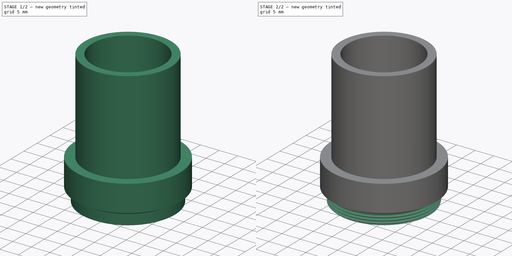
[diagram: build sequence overview — one tinted view per stage of 2, left to right]
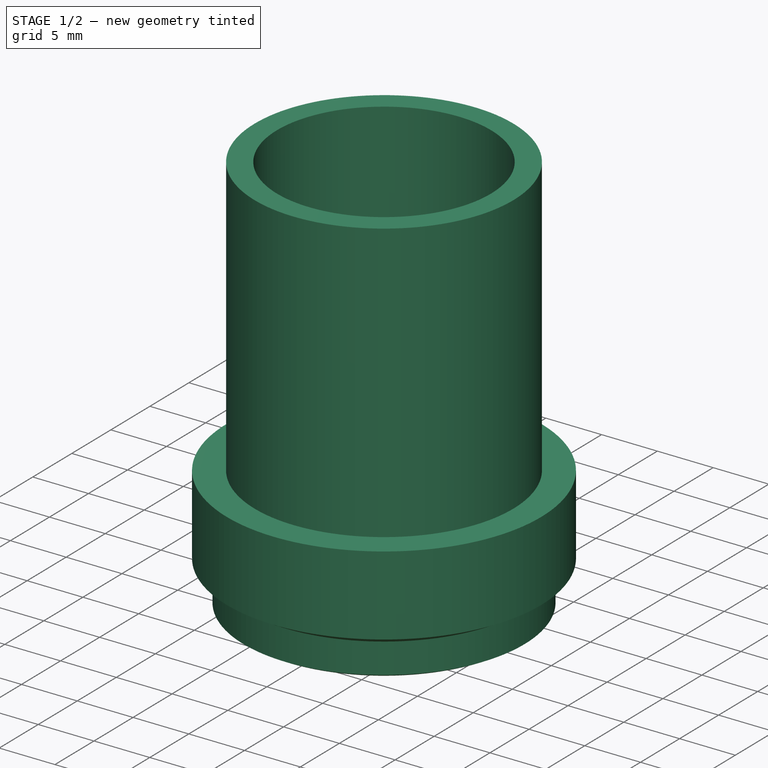
[diagram: stage 1 of 2 — iso view after this stage's code; geometry added in this stage tinted green]
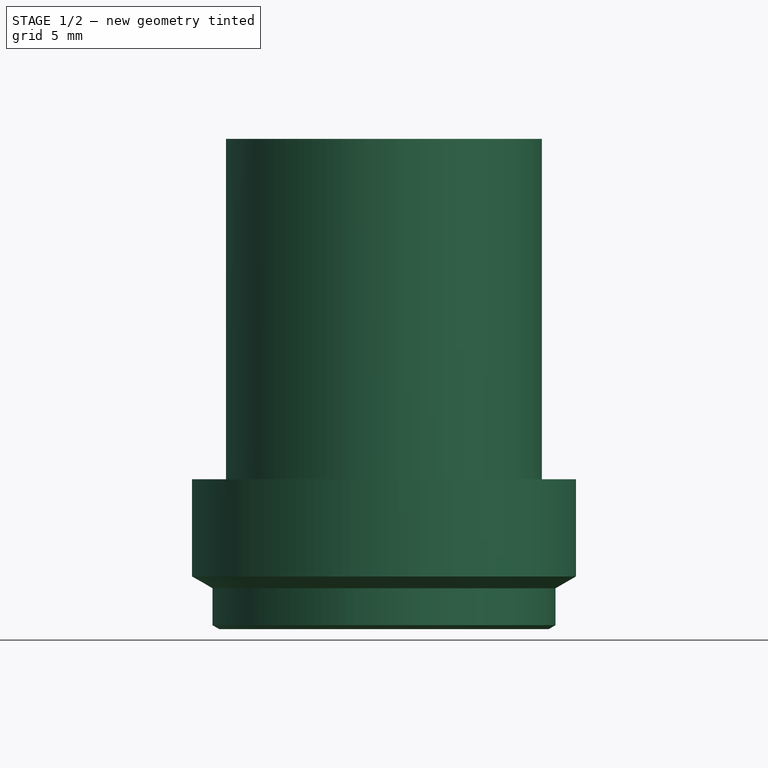
[diagram: stage 1 of 2 — front view after this stage's code; geometry added in this stage tinted green]
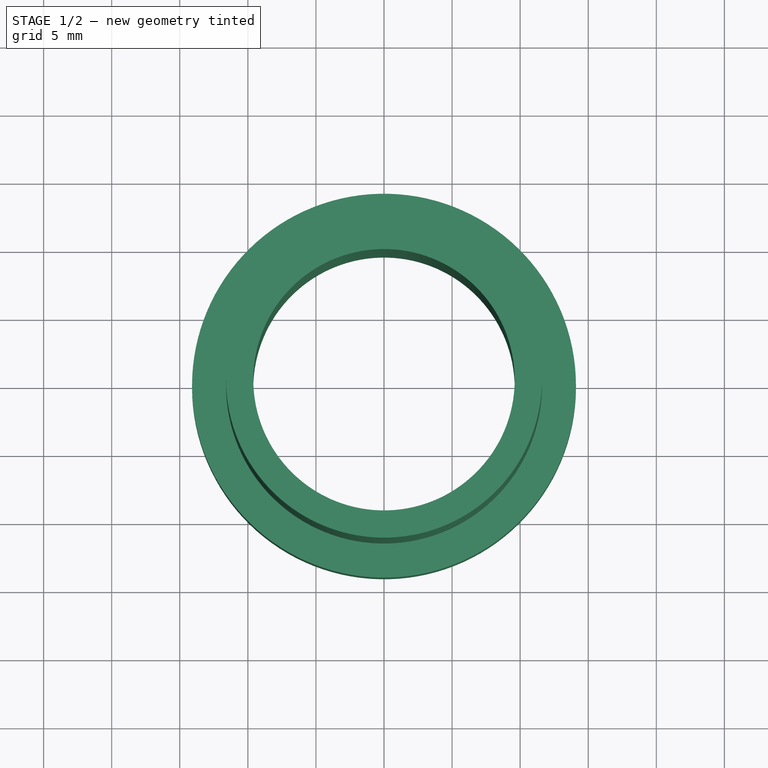
[diagram: stage 1 of 2 — top view after this stage's code; geometry added in this stage tinted green]
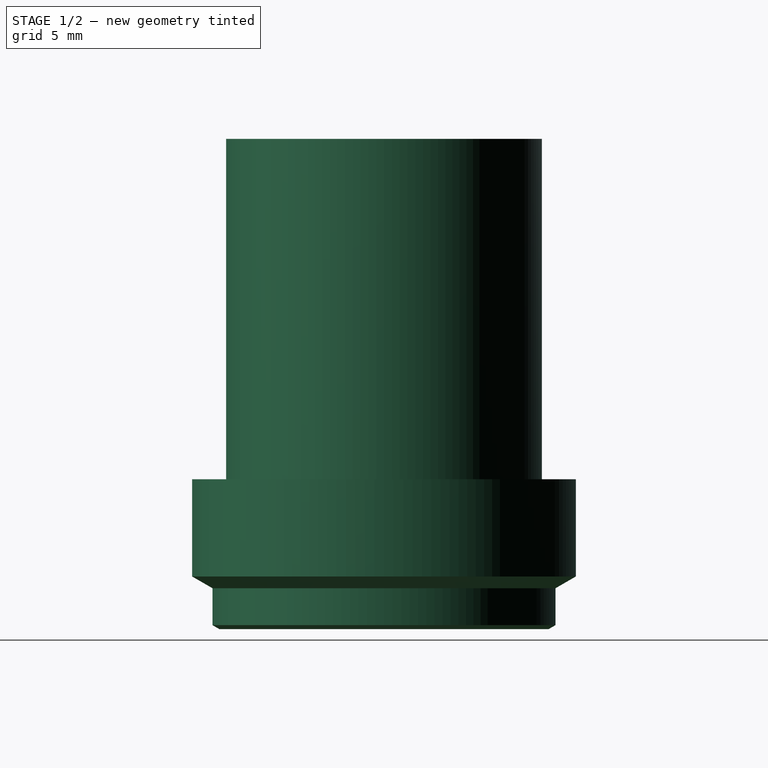
[diagram: stage 1 of 2 — right view after this stage's code; geometry added in this stage tinted green]
FCSTD DOCUMENT  (FreeCAD 1.0R39319 (Git))
Label: cam-adapter
License: All rights reserved
LicenseURL: https://en.wikipedia.org/wiki/All_rights_reserved
objects: Sketcher::SketchObject×2, PartDesign::Revolution×1, PartDesign::SubtractiveHelix×1, PartDesign::Body×1
note: 11 computed .brp shape members not serialized (recipe doc carries the construction recipe); baked Part::Feature solids carry a one-line shape summary decoded from their .brp

FEATURE [Sketcher::SketchObject] Sketch
  ArcFitTolerance = 1e-06
  AttachmentSupport = -> [XZ_Plane]
  FullyConstrained = true
  MakeInternals = false
  MapMode = 5
  Placement = pos=(0,0,0) rot=(1,0,0;1.5708rad)
  sketch-geometry (9):
    g0: LineSegment StartX=11.6 StartY=0 StartZ=0 EndX=14.1 EndY=0 EndZ=0
    g1: LineSegment StartX=14.1 StartY=0 StartZ=0 EndX=14.1 EndY=-7.13397 EndZ=0
    g2: LineSegment StartX=14.1 StartY=-7.13397 StartZ=0 EndX=12.6 EndY=-8 EndZ=0
    g3: LineSegment StartX=12.6 StartY=-8 StartZ=0 EndX=12.6 EndY=-10.7113 EndZ=0
    g4: LineSegment StartX=12.1 StartY=-11 StartZ=0 EndX=9.6 EndY=-11 EndZ=0
    g5: LineSegment StartX=9.6 StartY=-11 StartZ=0 EndX=9.6 EndY=25 EndZ=0
    g6: LineSegment StartX=11.6 StartY=0 StartZ=0 EndX=11.6 EndY=25 EndZ=0
    g7: LineSegment StartX=11.6 StartY=25 StartZ=0 EndX=9.6 EndY=25 EndZ=0
    g8: LineSegment StartX=12.6 StartY=-10.7113 StartZ=0 EndX=12.1 EndY=-11 EndZ=0
  constraints (27):
    c: PointOnObject(g0,g-1)
    c: PointOnObject(g0,g-1)
    c: Coincident(g0,g1)
    c: Vertical(g1)
    c: Coincident(g1,g2)
    c: Coincident(g2,g3)
    c: Vertical(g3)
    c: Horizontal(g4)
    c: Coincident(g4,g5)
    c: Vertical(g5)
    c: Coincident(g0,g6)
    c: Vertical(g6)
    c: Coincident(g6,g7)
    c: Horizontal(g7)
    c: Coincident(g5,g7)
    c: DistanceY(g6,g6) = 25
    c: DistanceX(g3) = 12.6
    c: DistanceX(g6) = 11.6
    c: DistanceX(g7,g7) = 2
    c: DistanceY(g4) = -11
    c: Coincident(g3,g8)
    c: Coincident(g8,g4)
    c: DistanceY(g4,g2) = 3
    c: Parallel(g8,g2)
    c: DistanceX(g4,g3) = 0.5
    c: Angle(g-1,g2) = 0.523599
    c: DistanceX(g2,g1) = 1.5
FEATURE [PartDesign::Revolution] Revolution
  Angle = 360
  Angle2 = 60
  Axis = (0,2e-16,1)
  Base = (0,0,0)
  Placement = pos=(0,0,0) rot=(1,0,0;1.5708rad)
  Profile = -> Sketch
  ReferenceAxis = -> Sketch [V_Axis]
  Refine = true
  Reversed = true
  Suppressed = false
  Type = 0
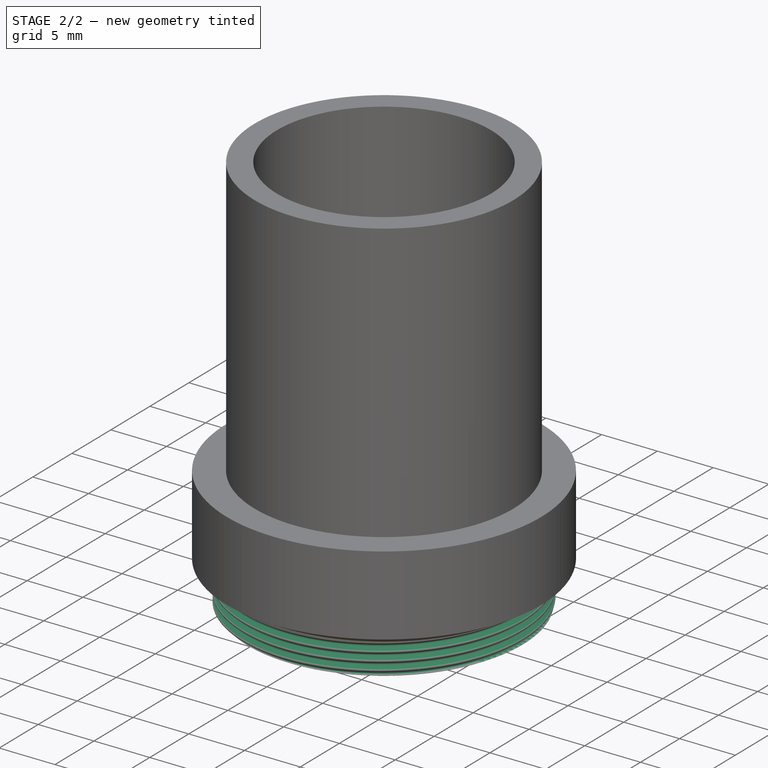
[diagram: stage 2 of 2 — iso view after this stage's code; geometry added in this stage tinted green]
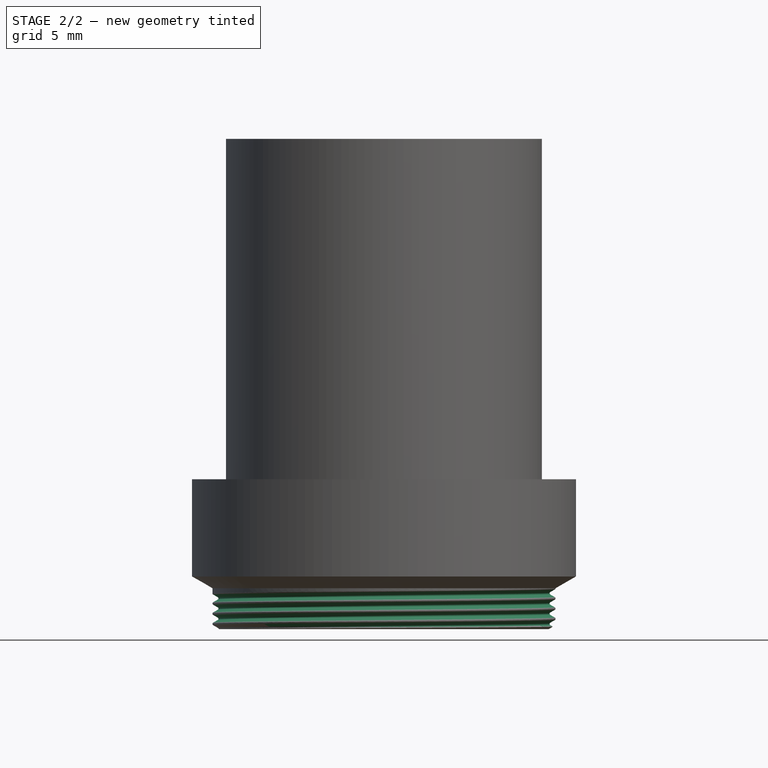
[diagram: stage 2 of 2 — front view after this stage's code; geometry added in this stage tinted green]
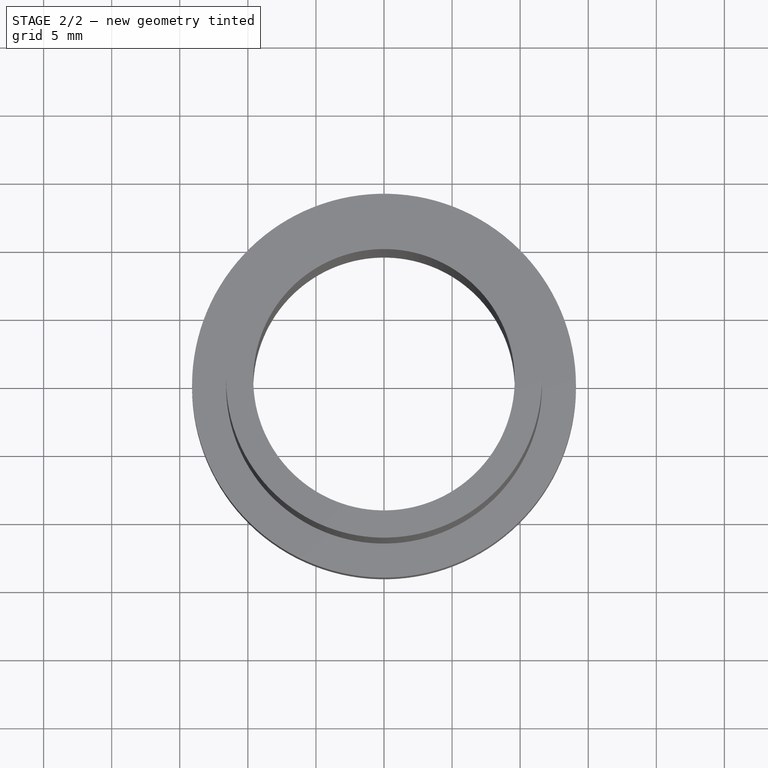
[diagram: stage 2 of 2 — top view after this stage's code; geometry added in this stage tinted green]
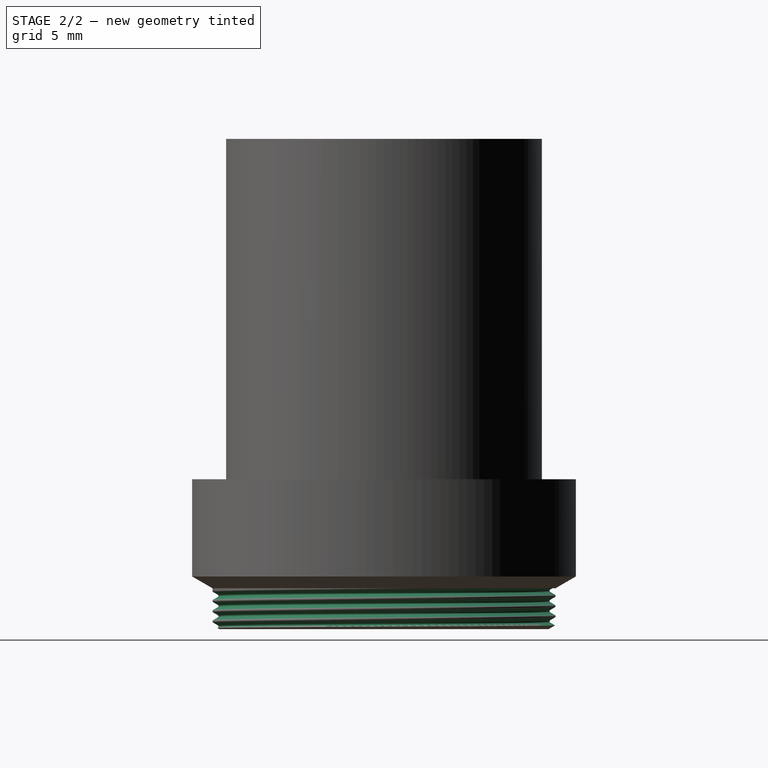
[diagram: stage 2 of 2 — right view after this stage's code; geometry added in this stage tinted green]
FEATURE [Sketcher::SketchObject] Sketch001
  ArcFitTolerance = 1e-06
  AttachmentSupport = -> [XZ_Plane]
  FullyConstrained = true
  MakeInternals = false
  MapMode = 5
  Placement = pos=(0,0,0) rot=(1,0,0;1.5708rad)
  sketch-geometry (6):
    g0: LineSegment StartX=12.2091 StartY=-11.4566 StartZ=0 EndX=12.55 EndY=-11.6534 EndZ=0
    g1: LineSegment StartX=12.6 StartY=-11.74 StartZ=0 EndX=12.6 EndY=-11 EndZ=0
    g2: LineSegment StartX=12.55 StartY=-11.0866 StartZ=0 EndX=12.2091 EndY=-11.2834 EndZ=0
    g3: ArcOfCircle CenterX=12.2591 CenterY=-11.37 CenterZ=0 NormalX=0 NormalY=0 NormalZ=1 AngleXU=0 Radius=0.1 StartAngle=2.0944 EndAngle=4.18879
    g4: ArcOfCircle CenterX=12.5 CenterY=-11.74 CenterZ=0 NormalX=0 NormalY=0 NormalZ=1 AngleXU=0 Radius=0.1 StartAngle=2.83e-14 EndAngle=1.0472
    g5: ArcOfCircle CenterX=12.5 CenterY=-11 CenterZ=0 NormalX=0 NormalY=0 NormalZ=1 AngleXU=0 Radius=0.1 StartAngle=5.23599 EndAngle=6.28319
  constraints (15):
    c: Vertical(g1)
    c: Tangent(g2,g3) = -1.5708
    c: Tangent(g3,g0) = -1.5708
    c: Radius(g3) = 0.1
    c: Equal(g0,g2)
    c: Angle(g0,g2) = 1.0472
    c: DistanceY(g1,g1) = 0.74
    c: DistanceX(g1) = 12.6
    c: DistanceY(g1) = -11
    c: Tangent(g5,g2) = 1.5708
    c: Tangent(g4,g0) = 1.5708
    c: Equal(g4,g5)
    c: Equal(g5,g3)
    c: Tangent(g1,g4) = -1.5708
    c: Tangent(g1,g5) = -1.5708
FEATURE [PartDesign::SubtractiveHelix] SubtractiveHelix
  Angle = 0
  Axis = (0,2e-16,1)
  Base = (0,0,0)
  BaseFeature = -> Revolution
  Growth = 0
  HasBeenEdited = true
  Height = 3.3
  LeftHanded = false
  Mode = 0
  Outside = false
  Pitch = 0.75
  Placement = pos=(0,0,0) rot=(1,0,0;1.5708rad)
  Profile = -> Sketch001
  ReferenceAxis = -> Sketch001 [V_Axis]
  Refine = true
  Suppressed = false
  Tolerance = 0.1
  Turns = 4.4
FEATURE [PartDesign::Body] Body
  AllowCompound = false
  Group = -> [Sketch,Revolution,Sketch001,SubtractiveHelix]
  Origin = -> Origin
  Tip = -> SubtractiveHelix
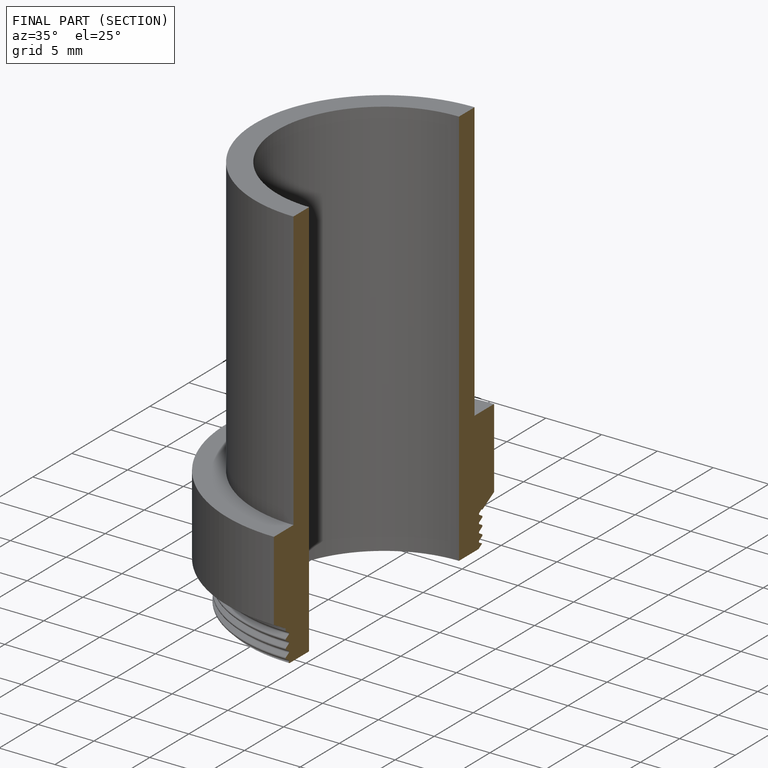
[diagram: finished part — half-section view (interior)]
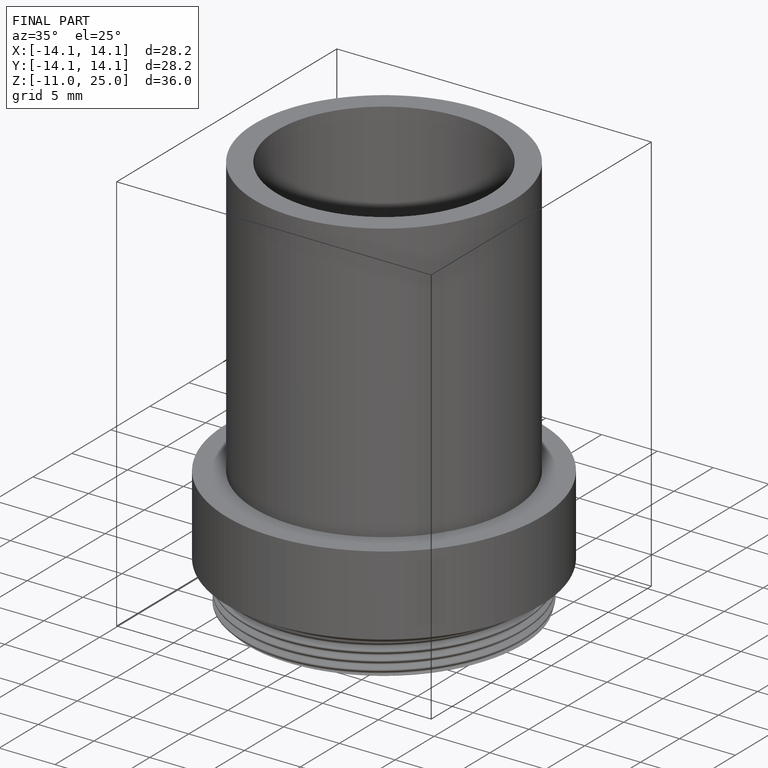
[diagram: finished part — iso view with bounding-box wireframe]
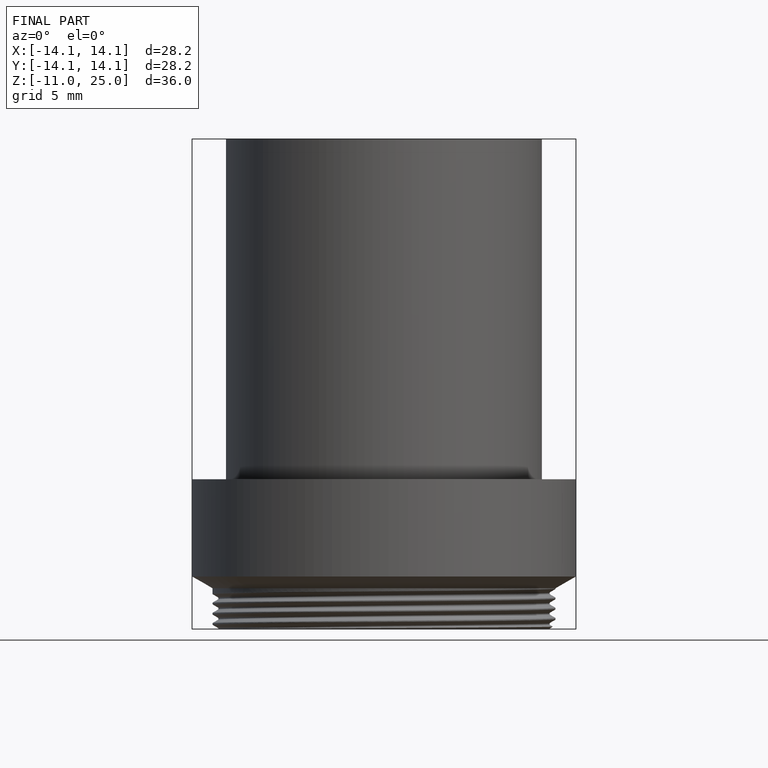
[diagram: finished part — front view with bounding-box wireframe]
